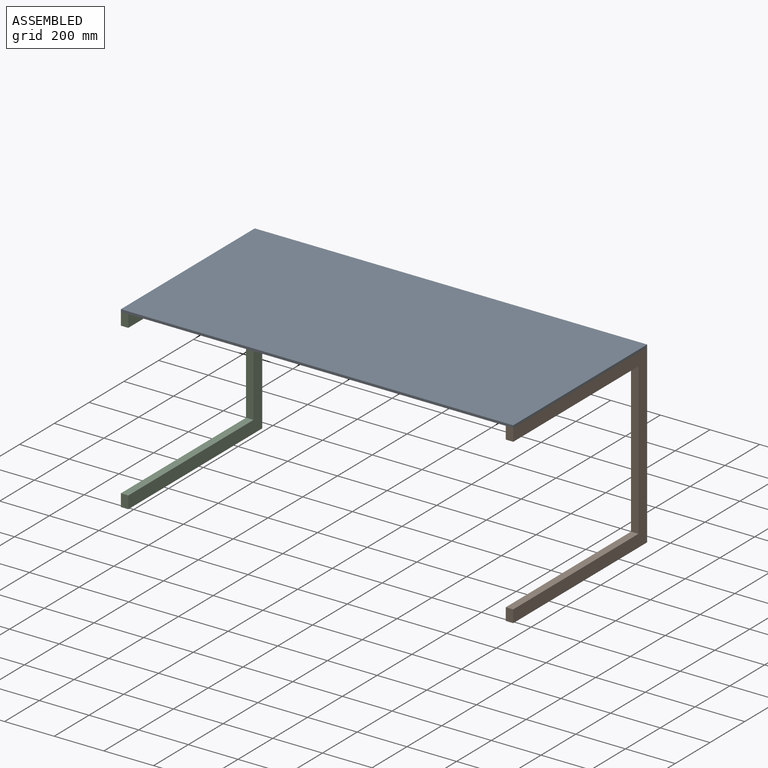
[diagram: assembled view]
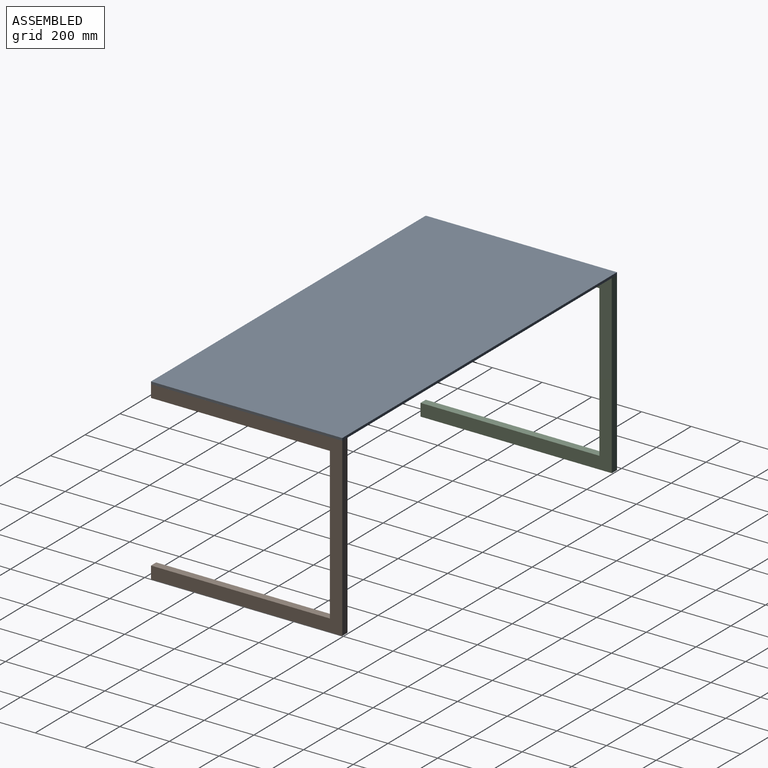
[diagram: assembled view, second angle]
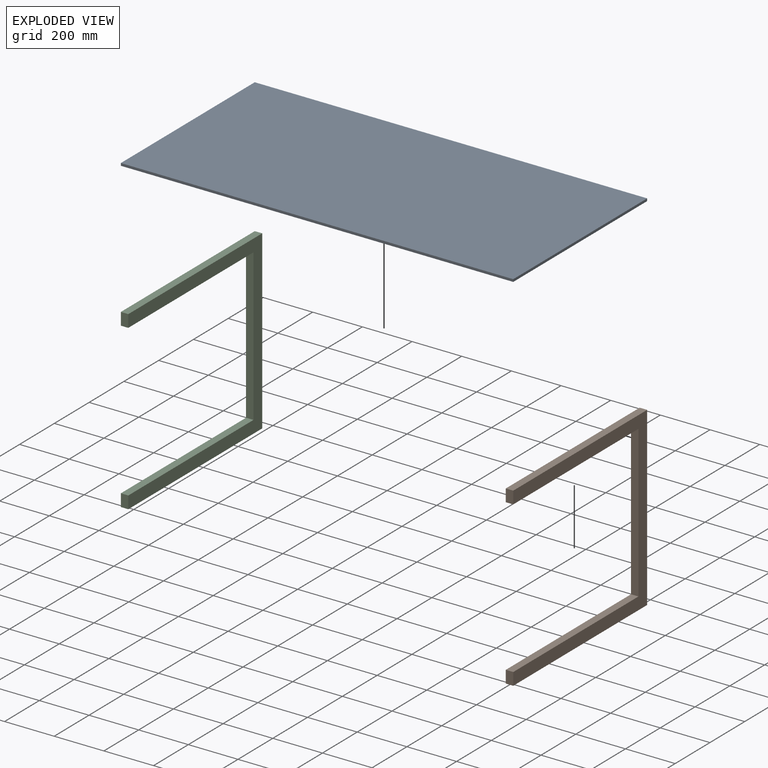
[diagram: exploded view]
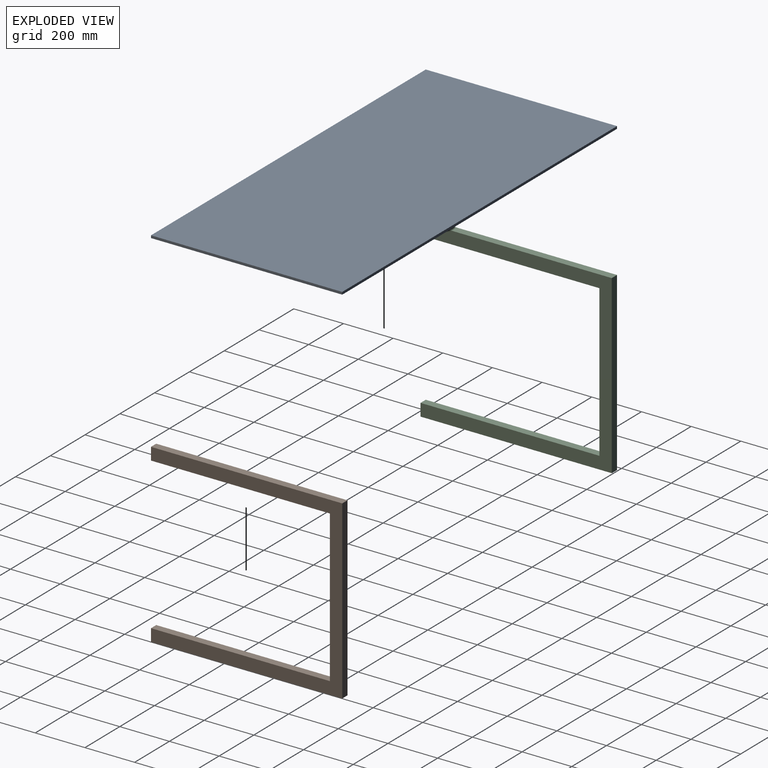
[diagram: exploded view, second angle]
ASSEMBLY  parts=3 mates=2
PART A: 6 faces, bbox 1580x770x10 mm
  f0: plane 1580x10mm, normal (0,1,0), area 15800mm2, adj f1,f3,f4,f5
  f1: plane 770x10mm, normal (-1,0,0), area 7700mm2, adj f0,f2,f4,f5
  f2: plane 1580x10mm, normal (0,-1,0), area 15800mm2, adj f1,f3,f4,f5
  f3: plane 770x10mm, normal (1,0,0), area 7700mm2, adj f0,f2,f4,f5
  f4: plane 1580x770mm, normal (0,0,1), area 1216600mm2, adj f0,f1,f2,f3
  f5: plane 1580x770mm, normal (0,0,-1), area 1216600mm2, adj f0,f1,f2,f3
PART B: 10 faces, bbox 30x770x710 mm
  f0: plane 770x30mm, normal (0,0,1), area 23100mm2, adj f1,f7,f8,f9
  f1: plane 50x30mm, normal (0,-1,0), area 1500mm2, adj f0,f2,f8,f9
  f2: plane 720x30mm, normal (0,0,-1), area 21600mm2, adj f1,f3,f8,f9
  f3: plane 610x30mm, normal (0,-1,0), area 18300mm2, adj f2,f4,f8,f9
  f4: plane 720x30mm, normal (0,0,1), area 21600mm2, adj f3,f5,f8,f9
  f5: plane 50x30mm, normal (0,-1,0), area 1500mm2, adj f4,f6,f8,f9
  f6: plane 770x30mm, normal (0,0,-1), area 23100mm2, adj f5,f7,f8,f9
  f7: plane 710x30mm, normal (0,1,0), area 21300mm2, adj f0,f6,f8,f9
  f8: plane 770x710mm, normal (-1,0,0), area 107500mm2, adj f0,f1,f2,f3,f4,f5,f6,f7
  f9: plane 770x710mm, normal (1,0,0), area 107500mm2, adj f0,f1,f2,f3,f4,f5,f6,f7
PART C: same geometry as B
PLACE A t=(237.95,-410.5,0)mm
PLACE B t=(237.95,-410.5,0)mm
PLACE C t=(-1312.05,-410.5,0)mm
MATE planar A.f5 <-> B.f0  axis (0,0,-1) through (1649.66,310.71,0)mm
MATE planar A.f5 <-> C.f0  axis (0,0,-1) through (69.66,310.71,0)mm
